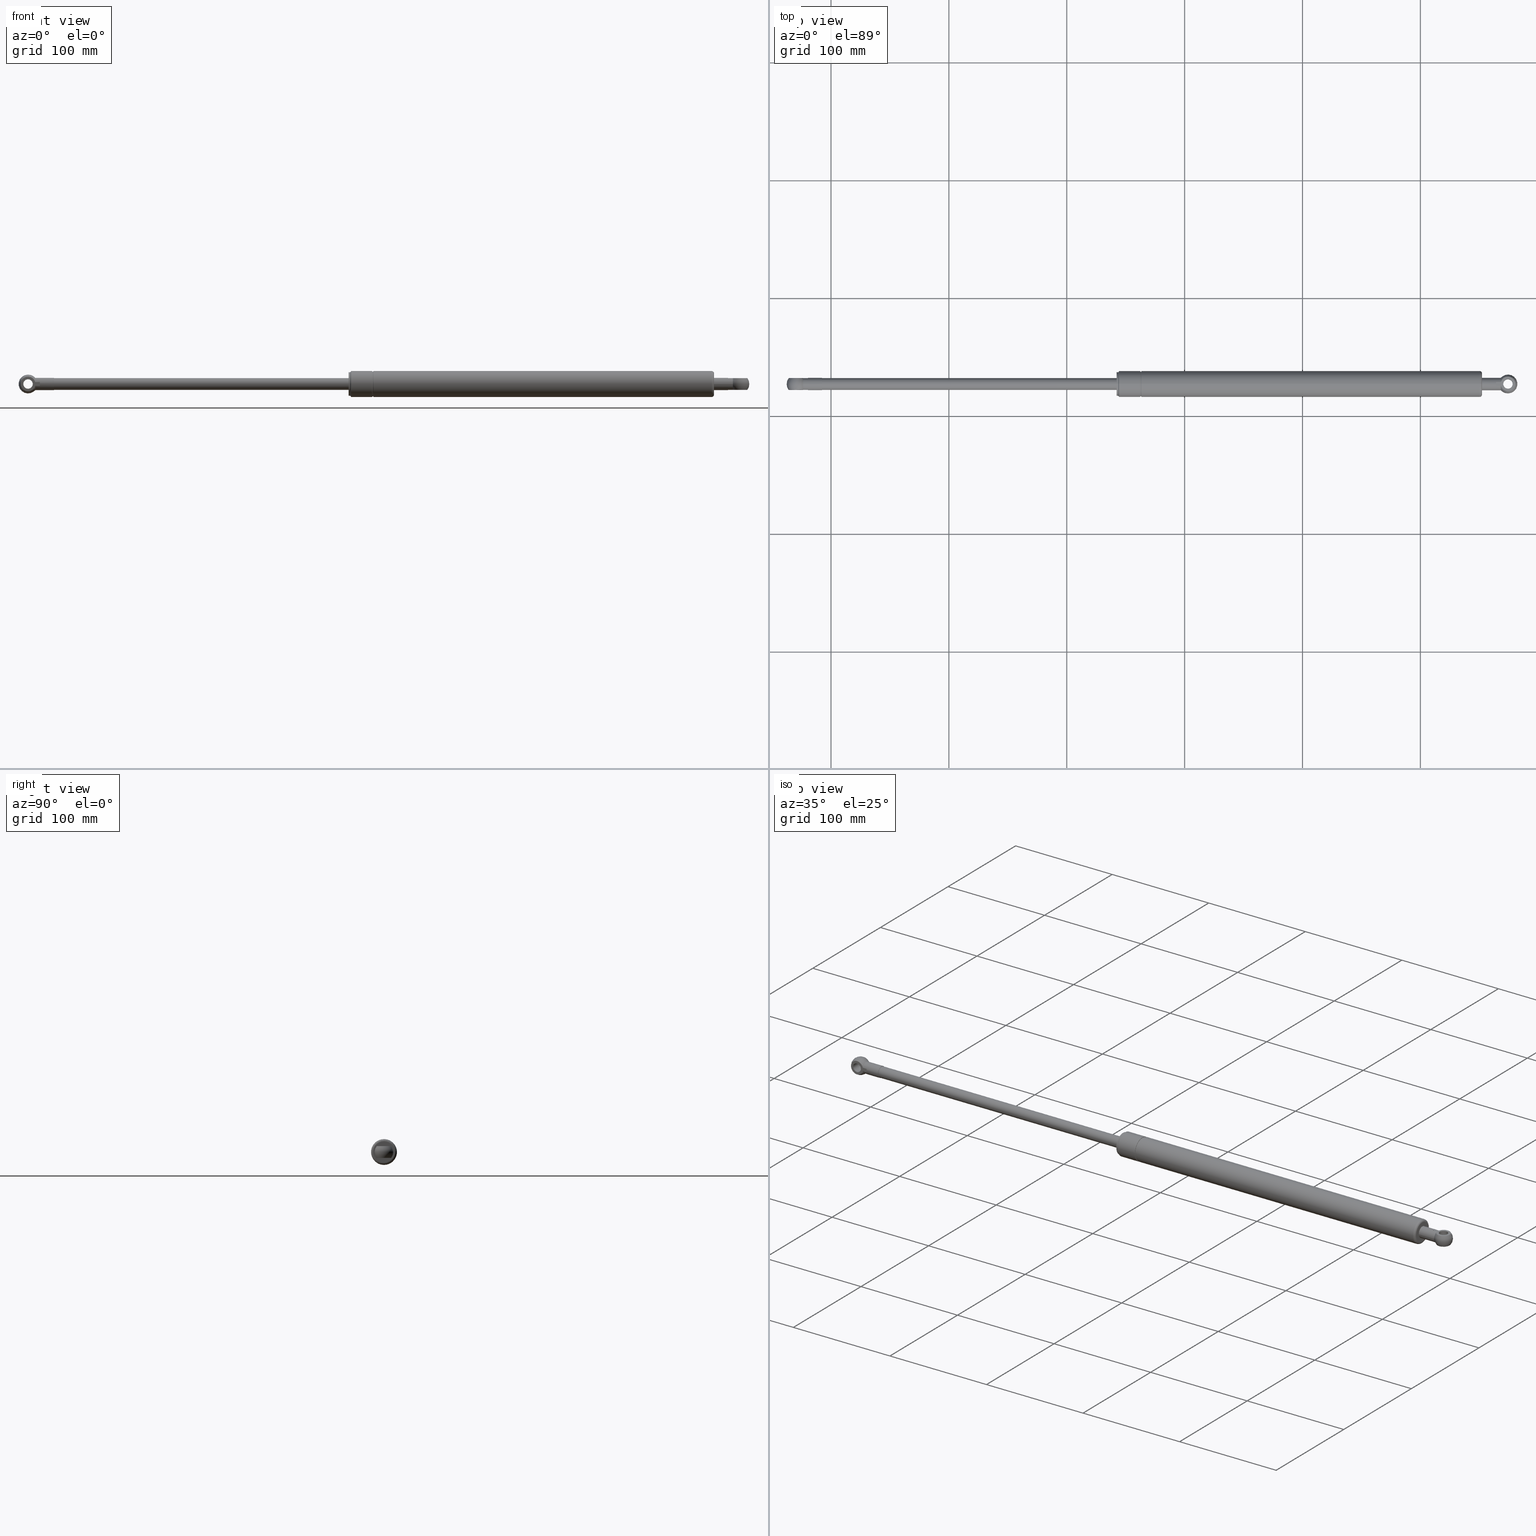
[diagram: canonical four-view strip — front | top / right | iso, engineering-drawing reading convention]
A machine part, canonical four-view strip (front | top / right | iso — engineering-drawing reading convention). The complete STEP part file that produces these views, byte-faithful:
ISO-10303-21;
HEADER;
/* Generated by software containing ST-Developer
 * from STEP Tools, Inc. (www.steptools.com) 
 */

FILE_DESCRIPTION(
/* description */ (''),
/* implementation_level */ '2;1');

FILE_NAME(
/* name */ '\\\\SYNOLOGYNAS\\web\\db2\\SBG-600-H\\\X2\B3C4BA74\X0\\\SB
G-600-H.stp',
/* time_stamp */ '2026-02-10T15:48:11+09:00',
/* author */ ('user'),
/* organization */ (''),
/* preprocessor_version */ 'ST-DEVELOPER v15.6',
/* originating_system */ 'Autodesk Inventor 2015',
/* authorisation */ '');

FILE_SCHEMA (('AUTOMOTIVE_DESIGN { 1 0 10303 214 3 1 1 }'));
ENDSEC;

DATA;
#10=MECHANICAL_DESIGN_GEOMETRIC_PRESENTATION_REPRESENTATION('',(#506,#508,
#509,#510,#511,#496,#494,#495,#497,#502,#499,#507,#498,#503,#504,#501,#500,
#505,#514,#516,#517,#512,#515,#513,#523,#524,#521,#519,#520,#522,#518,#526,
#525,#529,#530,#528,#531,#527,#534,#532,#535,#533,#536,#537),#1042);
#11=ITEM_DEFINED_TRANSFORMATION($,$,#586,#678);
#12=ITEM_DEFINED_TRANSFORMATION($,$,#628,#679);
#13=ITEM_DEFINED_TRANSFORMATION($,$,#644,#680);
#14=ITEM_DEFINED_TRANSFORMATION($,$,#653,#681);
#15=ITEM_DEFINED_TRANSFORMATION($,$,#653,#682);
#16=(
REPRESENTATION_RELATIONSHIP($,$,#1064,#1068)
REPRESENTATION_RELATIONSHIP_WITH_TRANSFORMATION(#11)
SHAPE_REPRESENTATION_RELATIONSHIP()
);
#17=(
REPRESENTATION_RELATIONSHIP($,$,#1065,#1068)
REPRESENTATION_RELATIONSHIP_WITH_TRANSFORMATION(#12)
SHAPE_REPRESENTATION_RELATIONSHIP()
);
#18=(
REPRESENTATION_RELATIONSHIP($,$,#1066,#1068)
REPRESENTATION_RELATIONSHIP_WITH_TRANSFORMATION(#13)
SHAPE_REPRESENTATION_RELATIONSHIP()
);
#19=(
REPRESENTATION_RELATIONSHIP($,$,#1067,#1068)
REPRESENTATION_RELATIONSHIP_WITH_TRANSFORMATION(#14)
SHAPE_REPRESENTATION_RELATIONSHIP()
);
#20=(
REPRESENTATION_RELATIONSHIP($,$,#1067,#1068)
REPRESENTATION_RELATIONSHIP_WITH_TRANSFORMATION(#15)
SHAPE_REPRESENTATION_RELATIONSHIP()
);
#21=CONTEXT_DEPENDENT_SHAPE_REPRESENTATION(#16,#1059);
#22=CONTEXT_DEPENDENT_SHAPE_REPRESENTATION(#17,#1060);
#23=CONTEXT_DEPENDENT_SHAPE_REPRESENTATION(#18,#1061);
#24=CONTEXT_DEPENDENT_SHAPE_REPRESENTATION(#19,#1062);
#25=CONTEXT_DEPENDENT_SHAPE_REPRESENTATION(#20,#1063);
#26=NEXT_ASSEMBLY_USAGE_OCCURRENCE('SBG-600-H (2):1',$,$,#1074,#1070,$);
#27=NEXT_ASSEMBLY_USAGE_OCCURRENCE('SBG-600-H (1):1',$,$,#1074,#1071,$);
#28=NEXT_ASSEMBLY_USAGE_OCCURRENCE('SBG-600-H (3):1',$,$,#1074,#1072,$);
#29=NEXT_ASSEMBLY_USAGE_OCCURRENCE('\X2\B9C1D06CBCFC\X0\:1',$,$,#1074,#1073,
$);
#30=NEXT_ASSEMBLY_USAGE_OCCURRENCE('\X2\B9C1D06CBCFC\X0\:2',$,$,#1074,#1073,
$);
#31=SPHERICAL_SURFACE('',#673,8.);
#32=LINE('',#1002,#38);
#33=LINE('',#1004,#39);
#34=LINE('',#1006,#40);
#35=LINE('',#1013,#41);
#36=LINE('',#1015,#42);
#37=LINE('',#1017,#43);
#38=VECTOR('',#843,3.96365176617517);
#39=VECTOR('',#844,3.20156211871644);
#40=VECTOR('',#845,3.96365176617517);
#41=VECTOR('',#854,3.96365176617518);
#42=VECTOR('',#855,3.20156211871644);
#43=VECTOR('',#856,3.96365176617518);
#44=SHAPE_REPRESENTATION_RELATIONSHIP('SRR','None',#1064,#48);
#45=SHAPE_REPRESENTATION_RELATIONSHIP('SRR','None',#1065,#49);
#46=SHAPE_REPRESENTATION_RELATIONSHIP('SRR','None',#1066,#50);
#47=SHAPE_REPRESENTATION_RELATIONSHIP('SRR','None',#1067,#51);
#48=ADVANCED_BREP_SHAPE_REPRESENTATION($,(#52),#1037);
#49=ADVANCED_BREP_SHAPE_REPRESENTATION($,(#53),#1038);
#50=ADVANCED_BREP_SHAPE_REPRESENTATION($,(#54),#1039);
#51=ADVANCED_BREP_SHAPE_REPRESENTATION($,(#55),#1040);
#52=MANIFOLD_SOLID_BREP('\X2\C194B9ACB4DC\X0\1',#582);
#53=MANIFOLD_SOLID_BREP('\X2\C194B9ACB4DC\X0\1',#583);
#54=MANIFOLD_SOLID_BREP('\X2\C194B9ACB4DC\X0\1',#584);
#55=MANIFOLD_SOLID_BREP('\X2\C194B9ACB4DC\X0\2',#585);
#56=CONICAL_SURFACE('',#612,3.75,44.9999999999996);
#57=CONICAL_SURFACE('',#629,3.75,45.);
#58=CONICAL_SURFACE('',#654,3.5735,45.);
#59=CONICAL_SURFACE('',#661,1.66175,59.);
#60=CYLINDRICAL_SURFACE('',#592,10.5);
#61=CYLINDRICAL_SURFACE('',#598,11.);
#62=CYLINDRICAL_SURFACE('',#605,2.);
#63=CYLINDRICAL_SURFACE('',#609,8.);
#64=CYLINDRICAL_SURFACE('',#611,9.);
#65=CYLINDRICAL_SURFACE('',#616,4.);
#66=CYLINDRICAL_SURFACE('',#620,10.);
#67=CYLINDRICAL_SURFACE('',#625,11.);
#68=CYLINDRICAL_SURFACE('',#632,4.);
#69=CYLINDRICAL_SURFACE('',#640,8.99999999999993);
#70=CYLINDRICAL_SURFACE('',#641,5.00000000000002);
#71=CYLINDRICAL_SURFACE('',#645,8.);
#72=CYLINDRICAL_SURFACE('',#650,5.);
#73=CYLINDRICAL_SURFACE('',#657,3.3235);
#74=CYLINDRICAL_SURFACE('',#662,4.);
#75=CYLINDRICAL_SURFACE('',#676,5.25);
#76=TOROIDAL_SURFACE('',#590,10.7,0.200000000000002);
#77=TOROIDAL_SURFACE('',#594,10.7,0.199999999999999);
#78=TOROIDAL_SURFACE('',#606,11.,3.);
#79=TOROIDAL_SURFACE('',#618,11.,1.);
#80=TOROIDAL_SURFACE('',#622,9.,2.);
#81=FACE_BOUND('',#162,.T.);
#82=FACE_BOUND('',#164,.T.);
#83=FACE_BOUND('',#166,.T.);
#84=FACE_BOUND('',#168,.T.);
#85=FACE_BOUND('',#170,.T.);
#86=FACE_BOUND('',#172,.T.);
#87=FACE_BOUND('',#175,.T.);
#88=FACE_BOUND('',#177,.T.);
#89=FACE_BOUND('',#179,.T.);
#90=FACE_BOUND('',#181,.T.);
#91=FACE_BOUND('',#183,.T.);
#92=FACE_BOUND('',#185,.T.);
#93=FACE_BOUND('',#188,.T.);
#94=FACE_BOUND('',#190,.T.);
#95=FACE_BOUND('',#192,.T.);
#96=FACE_BOUND('',#194,.T.);
#97=FACE_BOUND('',#196,.T.);
#98=FACE_BOUND('',#198,.T.);
#99=FACE_BOUND('',#200,.T.);
#100=FACE_BOUND('',#202,.T.);
#101=FACE_BOUND('',#204,.T.);
#102=FACE_BOUND('',#207,.T.);
#103=FACE_BOUND('',#210,.T.);
#104=FACE_BOUND('',#212,.T.);
#105=FACE_BOUND('',#214,.T.);
#106=FACE_BOUND('',#216,.T.);
#107=FACE_BOUND('',#218,.T.);
#108=FACE_BOUND('',#220,.T.);
#109=FACE_BOUND('',#222,.T.);
#110=FACE_BOUND('',#224,.T.);
#111=FACE_BOUND('',#226,.T.);
#112=FACE_BOUND('',#228,.T.);
#113=FACE_BOUND('',#231,.T.);
#114=FACE_BOUND('',#233,.T.);
#115=FACE_BOUND('',#236,.T.);
#116=FACE_BOUND('',#240,.T.);
#117=FACE_OUTER_BOUND('',#161,.T.);
#118=FACE_OUTER_BOUND('',#163,.T.);
#119=FACE_OUTER_BOUND('',#165,.T.);
#120=FACE_OUTER_BOUND('',#167,.T.);
#121=FACE_OUTER_BOUND('',#169,.T.);
#122=FACE_OUTER_BOUND('',#171,.T.);
#123=FACE_OUTER_BOUND('',#173,.T.);
#124=FACE_OUTER_BOUND('',#174,.T.);
#125=FACE_OUTER_BOUND('',#176,.T.);
#126=FACE_OUTER_BOUND('',#178,.T.);
#127=FACE_OUTER_BOUND('',#180,.T.);
#128=FACE_OUTER_BOUND('',#182,.T.);
#129=FACE_OUTER_BOUND('',#184,.T.);
#130=FACE_OUTER_BOUND('',#186,.T.);
#131=FACE_OUTER_BOUND('',#187,.T.);
#132=FACE_OUTER_BOUND('',#189,.T.);
#133=FACE_OUTER_BOUND('',#191,.T.);
#134=FACE_OUTER_BOUND('',#193,.T.);
#135=FACE_OUTER_BOUND('',#195,.T.);
#136=FACE_OUTER_BOUND('',#197,.T.);
#137=FACE_OUTER_BOUND('',#199,.T.);
#138=FACE_OUTER_BOUND('',#201,.T.);
#139=FACE_OUTER_BOUND('',#203,.T.);
#140=FACE_OUTER_BOUND('',#205,.T.);
#141=FACE_OUTER_BOUND('',#206,.T.);
#142=FACE_OUTER_BOUND('',#208,.T.);
#143=FACE_OUTER_BOUND('',#209,.T.);
#144=FACE_OUTER_BOUND('',#211,.T.);
#145=FACE_OUTER_BOUND('',#213,.T.);
#146=FACE_OUTER_BOUND('',#215,.T.);
#147=FACE_OUTER_BOUND('',#217,.T.);
#148=FACE_OUTER_BOUND('',#219,.T.);
#149=FACE_OUTER_BOUND('',#221,.T.);
#150=FACE_OUTER_BOUND('',#223,.T.);
#151=FACE_OUTER_BOUND('',#225,.T.);
#152=FACE_OUTER_BOUND('',#227,.T.);
#153=FACE_OUTER_BOUND('',#229,.T.);
#154=FACE_OUTER_BOUND('',#230,.T.);
#155=FACE_OUTER_BOUND('',#232,.T.);
#156=FACE_OUTER_BOUND('',#234,.T.);
#157=FACE_OUTER_BOUND('',#235,.T.);
#158=FACE_OUTER_BOUND('',#237,.T.);
#159=FACE_OUTER_BOUND('',#238,.T.);
#160=FACE_OUTER_BOUND('',#239,.T.);
#161=EDGE_LOOP('',(#378));
#162=EDGE_LOOP('',(#379));
#163=EDGE_LOOP('',(#380));
#164=EDGE_LOOP('',(#381));
#165=EDGE_LOOP('',(#382));
#166=EDGE_LOOP('',(#383));
#167=EDGE_LOOP('',(#384));
#168=EDGE_LOOP('',(#385));
#169=EDGE_LOOP('',(#386));
#170=EDGE_LOOP('',(#387));
#171=EDGE_LOOP('',(#388));
#172=EDGE_LOOP('',(#389));
#173=EDGE_LOOP('',(#390));
#174=EDGE_LOOP('',(#391));
#175=EDGE_LOOP('',(#392));
#176=EDGE_LOOP('',(#393));
#177=EDGE_LOOP('',(#394));
#178=EDGE_LOOP('',(#395));
#179=EDGE_LOOP('',(#396));
#180=EDGE_LOOP('',(#397));
#181=EDGE_LOOP('',(#398));
#182=EDGE_LOOP('',(#399));
#183=EDGE_LOOP('',(#400));
#184=EDGE_LOOP('',(#401));
#185=EDGE_LOOP('',(#402));
#186=EDGE_LOOP('',(#403));
#187=EDGE_LOOP('',(#404));
#188=EDGE_LOOP('',(#405));
#189=EDGE_LOOP('',(#406));
#190=EDGE_LOOP('',(#407));
#191=EDGE_LOOP('',(#408));
#192=EDGE_LOOP('',(#409));
#193=EDGE_LOOP('',(#410));
#194=EDGE_LOOP('',(#411));
#195=EDGE_LOOP('',(#412));
#196=EDGE_LOOP('',(#413));
#197=EDGE_LOOP('',(#414));
#198=EDGE_LOOP('',(#415));
#199=EDGE_LOOP('',(#416));
#200=EDGE_LOOP('',(#417));
#201=EDGE_LOOP('',(#418));
#202=EDGE_LOOP('',(#419));
#203=EDGE_LOOP('',(#420));
#204=EDGE_LOOP('',(#421));
#205=EDGE_LOOP('',(#422));
#206=EDGE_LOOP('',(#423));
#207=EDGE_LOOP('',(#424));
#208=EDGE_LOOP('',(#425));
#209=EDGE_LOOP('',(#426));
#210=EDGE_LOOP('',(#427));
#211=EDGE_LOOP('',(#428));
#212=EDGE_LOOP('',(#429));
#213=EDGE_LOOP('',(#430));
#214=EDGE_LOOP('',(#431));
#215=EDGE_LOOP('',(#432));
#216=EDGE_LOOP('',(#433));
#217=EDGE_LOOP('',(#434));
#218=EDGE_LOOP('',(#435));
#219=EDGE_LOOP('',(#436));
#220=EDGE_LOOP('',(#437));
#221=EDGE_LOOP('',(#438));
#222=EDGE_LOOP('',(#439));
#223=EDGE_LOOP('',(#440));
#224=EDGE_LOOP('',(#441));
#225=EDGE_LOOP('',(#442));
#226=EDGE_LOOP('',(#443));
#227=EDGE_LOOP('',(#444));
#228=EDGE_LOOP('',(#445));
#229=EDGE_LOOP('',(#446));
#230=EDGE_LOOP('',(#447));
#231=EDGE_LOOP('',(#448));
#232=EDGE_LOOP('',(#449,#450,#451,#452));
#233=EDGE_LOOP('',(#453));
#234=EDGE_LOOP('',(#454,#455));
#235=EDGE_LOOP('',(#456,#457,#458,#459));
#236=EDGE_LOOP('',(#460));
#237=EDGE_LOOP('',(#461,#462));
#238=EDGE_LOOP('',(#463,#464,#465,#466));
#239=EDGE_LOOP('',(#467,#468,#469,#470,#471,#472,#473,#474));
#240=EDGE_LOOP('',(#475));
#241=CIRCLE('',#588,11.);
#242=CIRCLE('',#589,10.7);
#243=CIRCLE('',#591,10.5);
#244=CIRCLE('',#593,10.5);
#245=CIRCLE('',#595,10.7);
#246=CIRCLE('',#597,11.);
#247=CIRCLE('',#599,11.);
#248=CIRCLE('',#601,2.);
#249=CIRCLE('',#603,9.);
#250=CIRCLE('',#604,2.);
#251=CIRCLE('',#607,8.);
#252=CIRCLE('',#608,9.);
#253=CIRCLE('',#610,8.);
#254=CIRCLE('',#613,3.5);
#255=CIRCLE('',#614,4.);
#256=CIRCLE('',#617,4.);
#257=CIRCLE('',#619,10.);
#258=CIRCLE('',#621,10.);
#259=CIRCLE('',#623,11.);
#260=CIRCLE('',#624,9.);
#261=CIRCLE('',#630,4.);
#262=CIRCLE('',#631,3.5);
#263=CIRCLE('',#633,4.);
#264=CIRCLE('',#636,8.99999999999989);
#265=CIRCLE('',#637,5.);
#266=CIRCLE('',#639,8.99999999999996);
#267=CIRCLE('',#642,5.00000000000003);
#268=CIRCLE('',#646,8.);
#269=CIRCLE('',#647,8.);
#270=CIRCLE('',#649,5.);
#271=CIRCLE('',#651,5.);
#272=CIRCLE('',#655,3.3235);
#273=CIRCLE('',#656,3.8235);
#274=CIRCLE('',#658,3.3235);
#275=CIRCLE('',#660,5.25);
#276=CIRCLE('',#663,4.);
#277=CIRCLE('',#664,4.);
#278=CIRCLE('',#666,6.2449979983984);
#279=CIRCLE('',#668,5.25);
#280=CIRCLE('',#670,6.2449979983984);
#281=CIRCLE('',#672,5.25);
#282=CIRCLE('',#674,5.25);
#283=CIRCLE('',#675,5.25);
#284=VERTEX_POINT('',#885);
#285=VERTEX_POINT('',#887);
#286=VERTEX_POINT('',#890);
#287=VERTEX_POINT('',#893);
#288=VERTEX_POINT('',#896);
#289=VERTEX_POINT('',#899);
#290=VERTEX_POINT('',#902);
#291=VERTEX_POINT('',#905);
#292=VERTEX_POINT('',#908);
#293=VERTEX_POINT('',#910);
#294=VERTEX_POINT('',#914);
#295=VERTEX_POINT('',#916);
#296=VERTEX_POINT('',#919);
#297=VERTEX_POINT('',#923);
#298=VERTEX_POINT('',#925);
#299=VERTEX_POINT('',#929);
#300=VERTEX_POINT('',#932);
#301=VERTEX_POINT('',#935);
#302=VERTEX_POINT('',#938);
#303=VERTEX_POINT('',#940);
#304=VERTEX_POINT('',#947);
#305=VERTEX_POINT('',#949);
#306=VERTEX_POINT('',#952);
#307=VERTEX_POINT('',#956);
#308=VERTEX_POINT('',#958);
#309=VERTEX_POINT('',#961);
#310=VERTEX_POINT('',#965);
#311=VERTEX_POINT('',#970);
#312=VERTEX_POINT('',#972);
#313=VERTEX_POINT('',#975);
#314=VERTEX_POINT('',#978);
#315=VERTEX_POINT('',#983);
#316=VERTEX_POINT('',#985);
#317=VERTEX_POINT('',#988);
#318=VERTEX_POINT('',#991);
#319=VERTEX_POINT('',#995);
#320=VERTEX_POINT('',#997);
#321=VERTEX_POINT('',#1000);
#322=VERTEX_POINT('',#1001);
#323=VERTEX_POINT('',#1003);
#324=VERTEX_POINT('',#1005);
#325=VERTEX_POINT('',#1011);
#326=VERTEX_POINT('',#1012);
#327=VERTEX_POINT('',#1014);
#328=VERTEX_POINT('',#1016);
#329=EDGE_CURVE('',#284,#284,#241,.T.);
#330=EDGE_CURVE('',#285,#285,#242,.T.);
#331=EDGE_CURVE('',#286,#286,#243,.T.);
#332=EDGE_CURVE('',#287,#287,#244,.T.);
#333=EDGE_CURVE('',#288,#288,#245,.T.);
#334=EDGE_CURVE('',#289,#289,#246,.T.);
#335=EDGE_CURVE('',#290,#290,#247,.T.);
#336=EDGE_CURVE('',#291,#291,#248,.T.);
#337=EDGE_CURVE('',#292,#292,#249,.T.);
#338=EDGE_CURVE('',#293,#293,#250,.T.);
#339=EDGE_CURVE('',#294,#294,#251,.T.);
#340=EDGE_CURVE('',#295,#295,#252,.F.);
#341=EDGE_CURVE('',#296,#296,#253,.T.);
#342=EDGE_CURVE('',#297,#297,#254,.T.);
#343=EDGE_CURVE('',#298,#298,#255,.T.);
#344=EDGE_CURVE('',#299,#299,#256,.T.);
#345=EDGE_CURVE('',#300,#300,#257,.T.);
#346=EDGE_CURVE('',#301,#301,#258,.T.);
#347=EDGE_CURVE('',#302,#302,#259,.T.);
#348=EDGE_CURVE('',#303,#303,#260,.T.);
#349=EDGE_CURVE('',#304,#304,#261,.T.);
#350=EDGE_CURVE('',#305,#305,#262,.T.);
#351=EDGE_CURVE('',#306,#306,#263,.T.);
#352=EDGE_CURVE('',#307,#307,#264,.T.);
#353=EDGE_CURVE('',#308,#308,#265,.T.);
#354=EDGE_CURVE('',#309,#309,#266,.T.);
#355=EDGE_CURVE('',#310,#310,#267,.T.);
#356=EDGE_CURVE('',#311,#311,#268,.T.);
#357=EDGE_CURVE('',#312,#312,#269,.T.);
#358=EDGE_CURVE('',#313,#313,#270,.T.);
#359=EDGE_CURVE('',#314,#314,#271,.T.);
#360=EDGE_CURVE('',#315,#315,#272,.T.);
#361=EDGE_CURVE('',#316,#316,#273,.T.);
#362=EDGE_CURVE('',#317,#317,#274,.T.);
#363=EDGE_CURVE('',#318,#318,#275,.T.);
#364=EDGE_CURVE('',#319,#319,#276,.T.);
#365=EDGE_CURVE('',#320,#320,#277,.T.);
#366=EDGE_CURVE('',#321,#322,#32,.T.);
#367=EDGE_CURVE('',#321,#323,#33,.T.);
#368=EDGE_CURVE('',#324,#323,#34,.T.);
#369=EDGE_CURVE('',#322,#324,#278,.T.);
#370=EDGE_CURVE('',#323,#321,#279,.T.);
#371=EDGE_CURVE('',#325,#326,#35,.T.);
#372=EDGE_CURVE('',#325,#327,#36,.T.);
#373=EDGE_CURVE('',#328,#327,#37,.T.);
#374=EDGE_CURVE('',#326,#328,#280,.T.);
#375=EDGE_CURVE('',#327,#325,#281,.T.);
#376=EDGE_CURVE('',#324,#326,#282,.T.);
#377=EDGE_CURVE('',#328,#322,#283,.T.);
#378=ORIENTED_EDGE('',*,*,#329,.F.);
#379=ORIENTED_EDGE('',*,*,#330,.T.);
#380=ORIENTED_EDGE('',*,*,#330,.F.);
#381=ORIENTED_EDGE('',*,*,#331,.T.);
#382=ORIENTED_EDGE('',*,*,#331,.F.);
#383=ORIENTED_EDGE('',*,*,#332,.T.);
#384=ORIENTED_EDGE('',*,*,#332,.F.);
#385=ORIENTED_EDGE('',*,*,#333,.T.);
#386=ORIENTED_EDGE('',*,*,#334,.F.);
#387=ORIENTED_EDGE('',*,*,#333,.F.);
#388=ORIENTED_EDGE('',*,*,#335,.T.);
#389=ORIENTED_EDGE('',*,*,#334,.T.);
#390=ORIENTED_EDGE('',*,*,#336,.T.);
#391=ORIENTED_EDGE('',*,*,#337,.T.);
#392=ORIENTED_EDGE('',*,*,#338,.F.);
#393=ORIENTED_EDGE('',*,*,#336,.F.);
#394=ORIENTED_EDGE('',*,*,#338,.T.);
#395=ORIENTED_EDGE('',*,*,#339,.F.);
#396=ORIENTED_EDGE('',*,*,#340,.T.);
#397=ORIENTED_EDGE('',*,*,#341,.F.);
#398=ORIENTED_EDGE('',*,*,#339,.T.);
#399=ORIENTED_EDGE('',*,*,#337,.F.);
#400=ORIENTED_EDGE('',*,*,#340,.F.);
#401=ORIENTED_EDGE('',*,*,#342,.T.);
#402=ORIENTED_EDGE('',*,*,#343,.T.);
#403=ORIENTED_EDGE('',*,*,#342,.F.);
#404=ORIENTED_EDGE('',*,*,#344,.F.);
#405=ORIENTED_EDGE('',*,*,#343,.F.);
#406=ORIENTED_EDGE('',*,*,#345,.T.);
#407=ORIENTED_EDGE('',*,*,#335,.F.);
#408=ORIENTED_EDGE('',*,*,#346,.T.);
#409=ORIENTED_EDGE('',*,*,#345,.F.);
#410=ORIENTED_EDGE('',*,*,#347,.T.);
#411=ORIENTED_EDGE('',*,*,#348,.T.);
#412=ORIENTED_EDGE('',*,*,#329,.T.);
#413=ORIENTED_EDGE('',*,*,#347,.F.);
#414=ORIENTED_EDGE('',*,*,#348,.F.);
#415=ORIENTED_EDGE('',*,*,#344,.T.);
#416=ORIENTED_EDGE('',*,*,#346,.F.);
#417=ORIENTED_EDGE('',*,*,#341,.T.);
#418=ORIENTED_EDGE('',*,*,#349,.T.);
#419=ORIENTED_EDGE('',*,*,#350,.T.);
#420=ORIENTED_EDGE('',*,*,#351,.F.);
#421=ORIENTED_EDGE('',*,*,#349,.F.);
#422=ORIENTED_EDGE('',*,*,#350,.F.);
#423=ORIENTED_EDGE('',*,*,#352,.T.);
#424=ORIENTED_EDGE('',*,*,#353,.F.);
#425=ORIENTED_EDGE('',*,*,#354,.F.);
#426=ORIENTED_EDGE('',*,*,#352,.F.);
#427=ORIENTED_EDGE('',*,*,#354,.T.);
#428=ORIENTED_EDGE('',*,*,#355,.F.);
#429=ORIENTED_EDGE('',*,*,#353,.T.);
#430=ORIENTED_EDGE('',*,*,#355,.T.);
#431=ORIENTED_EDGE('',*,*,#351,.T.);
#432=ORIENTED_EDGE('',*,*,#356,.F.);
#433=ORIENTED_EDGE('',*,*,#357,.T.);
#434=ORIENTED_EDGE('',*,*,#356,.T.);
#435=ORIENTED_EDGE('',*,*,#358,.F.);
#436=ORIENTED_EDGE('',*,*,#359,.F.);
#437=ORIENTED_EDGE('',*,*,#358,.T.);
#438=ORIENTED_EDGE('',*,*,#357,.F.);
#439=ORIENTED_EDGE('',*,*,#359,.T.);
#440=ORIENTED_EDGE('',*,*,#360,.T.);
#441=ORIENTED_EDGE('',*,*,#361,.T.);
#442=ORIENTED_EDGE('',*,*,#362,.F.);
#443=ORIENTED_EDGE('',*,*,#360,.F.);
#444=ORIENTED_EDGE('',*,*,#363,.T.);
#445=ORIENTED_EDGE('',*,*,#361,.F.);
#446=ORIENTED_EDGE('',*,*,#362,.T.);
#447=ORIENTED_EDGE('',*,*,#364,.F.);
#448=ORIENTED_EDGE('',*,*,#365,.F.);
#449=ORIENTED_EDGE('',*,*,#366,.F.);
#450=ORIENTED_EDGE('',*,*,#367,.T.);
#451=ORIENTED_EDGE('',*,*,#368,.F.);
#452=ORIENTED_EDGE('',*,*,#369,.F.);
#453=ORIENTED_EDGE('',*,*,#364,.T.);
#454=ORIENTED_EDGE('',*,*,#370,.F.);
#455=ORIENTED_EDGE('',*,*,#367,.F.);
#456=ORIENTED_EDGE('',*,*,#371,.F.);
#457=ORIENTED_EDGE('',*,*,#372,.T.);
#458=ORIENTED_EDGE('',*,*,#373,.F.);
#459=ORIENTED_EDGE('',*,*,#374,.F.);
#460=ORIENTED_EDGE('',*,*,#365,.T.);
#461=ORIENTED_EDGE('',*,*,#375,.F.);
#462=ORIENTED_EDGE('',*,*,#372,.F.);
#463=ORIENTED_EDGE('',*,*,#369,.T.);
#464=ORIENTED_EDGE('',*,*,#376,.T.);
#465=ORIENTED_EDGE('',*,*,#374,.T.);
#466=ORIENTED_EDGE('',*,*,#377,.T.);
#467=ORIENTED_EDGE('',*,*,#366,.T.);
#468=ORIENTED_EDGE('',*,*,#377,.F.);
#469=ORIENTED_EDGE('',*,*,#373,.T.);
#470=ORIENTED_EDGE('',*,*,#375,.T.);
#471=ORIENTED_EDGE('',*,*,#371,.T.);
#472=ORIENTED_EDGE('',*,*,#376,.F.);
#473=ORIENTED_EDGE('',*,*,#368,.T.);
#474=ORIENTED_EDGE('',*,*,#370,.T.);
#475=ORIENTED_EDGE('',*,*,#363,.F.);
#476=PLANE('',#587);
#477=PLANE('',#596);
#478=PLANE('',#600);
#479=PLANE('',#602);
#480=PLANE('',#615);
#481=PLANE('',#626);
#482=PLANE('',#627);
#483=PLANE('',#634);
#484=PLANE('',#635);
#485=PLANE('',#638);
#486=PLANE('',#643);
#487=PLANE('',#648);
#488=PLANE('',#652);
#489=PLANE('',#659);
#490=PLANE('',#665);
#491=PLANE('',#667);
#492=PLANE('',#669);
#493=PLANE('',#671);
#494=STYLED_ITEM('',(#1096),#538);
#495=STYLED_ITEM('',(#1096),#539);
#496=STYLED_ITEM('',(#1096),#540);
#497=STYLED_ITEM('',(#1096),#541);
#498=STYLED_ITEM('',(#1096),#542);
#499=STYLED_ITEM('',(#1096),#543);
#500=STYLED_ITEM('',(#1096),#544);
#501=STYLED_ITEM('',(#1096),#545);
#502=STYLED_ITEM('',(#1096),#546);
#503=STYLED_ITEM('',(#1096),#547);
#504=STYLED_ITEM('',(#1096),#548);
#505=STYLED_ITEM('',(#1096),#549);
#506=STYLED_ITEM('',(#1096),#550);
#507=STYLED_ITEM('',(#1096),#551);
#508=STYLED_ITEM('',(#1096),#552);
#509=STYLED_ITEM('',(#1096),#553);
#510=STYLED_ITEM('',(#1096),#554);
#511=STYLED_ITEM('',(#1096),#555);
#512=STYLED_ITEM('',(#1096),#556);
#513=STYLED_ITEM('',(#1096),#557);
#514=STYLED_ITEM('',(#1096),#558);
#515=STYLED_ITEM('',(#1095),#52);
#516=STYLED_ITEM('',(#1098),#559);
#517=STYLED_ITEM('',(#1098),#560);
#518=STYLED_ITEM('',(#1098),#561);
#519=STYLED_ITEM('',(#1098),#562);
#520=STYLED_ITEM('',(#1098),#563);
#521=STYLED_ITEM('',(#1098),#564);
#522=STYLED_ITEM('',(#1098),#565);
#523=STYLED_ITEM('',(#1098),#566);
#524=STYLED_ITEM('',(#1097),#53);
#525=STYLED_ITEM('',(#1099),#54);
#526=STYLED_ITEM('',(#1100),#571);
#527=STYLED_ITEM('',(#1100),#572);
#528=STYLED_ITEM('',(#1100),#573);
#529=STYLED_ITEM('',(#1100),#574);
#530=STYLED_ITEM('',(#1100),#575);
#531=STYLED_ITEM('',(#1100),#576);
#532=STYLED_ITEM('',(#1100),#577);
#533=STYLED_ITEM('',(#1100),#578);
#534=STYLED_ITEM('',(#1100),#579);
#535=STYLED_ITEM('',(#1100),#580);
#536=STYLED_ITEM('',(#1100),#581);
#537=STYLED_ITEM('',(#1095),#55);
#538=ADVANCED_FACE('',(#117,#81),#476,.F.);
#539=ADVANCED_FACE('',(#118,#82),#76,.F.);
#540=ADVANCED_FACE('',(#119,#83),#60,.T.);
#541=ADVANCED_FACE('',(#120,#84),#77,.F.);
#542=ADVANCED_FACE('',(#121,#85),#477,.F.);
#543=ADVANCED_FACE('',(#122,#86),#61,.T.);
#544=ADVANCED_FACE('',(#123),#478,.F.);
#545=ADVANCED_FACE('',(#124,#87),#479,.F.);
#546=ADVANCED_FACE('',(#125,#88),#62,.F.);
#547=ADVANCED_FACE('',(#126,#89),#78,.T.);
#548=ADVANCED_FACE('',(#127,#90),#63,.F.);
#549=ADVANCED_FACE('',(#128,#91),#64,.F.);
#550=ADVANCED_FACE('',(#129,#92),#56,.T.);
#551=ADVANCED_FACE('',(#130),#480,.T.);
#552=ADVANCED_FACE('',(#131,#93),#65,.T.);
#553=ADVANCED_FACE('',(#132,#94),#79,.F.);
#554=ADVANCED_FACE('',(#133,#95),#66,.T.);
#555=ADVANCED_FACE('',(#134,#96),#80,.T.);
#556=ADVANCED_FACE('',(#135,#97),#67,.T.);
#557=ADVANCED_FACE('',(#136,#98),#481,.T.);
#558=ADVANCED_FACE('',(#137,#99),#482,.T.);
#559=ADVANCED_FACE('',(#138,#100),#57,.T.);
#560=ADVANCED_FACE('',(#139,#101),#68,.T.);
#561=ADVANCED_FACE('',(#140),#483,.F.);
#562=ADVANCED_FACE('',(#141,#102),#484,.T.);
#563=ADVANCED_FACE('',(#142),#485,.T.);
#564=ADVANCED_FACE('',(#143,#103),#69,.T.);
#565=ADVANCED_FACE('',(#144,#104),#70,.T.);
#566=ADVANCED_FACE('',(#145,#105),#486,.T.);
#567=ADVANCED_FACE('',(#146,#106),#71,.T.);
#568=ADVANCED_FACE('',(#147,#107),#487,.T.);
#569=ADVANCED_FACE('',(#148,#108),#72,.F.);
#570=ADVANCED_FACE('',(#149,#109),#488,.T.);
#571=ADVANCED_FACE('',(#150,#110),#58,.F.);
#572=ADVANCED_FACE('',(#151,#111),#73,.F.);
#573=ADVANCED_FACE('',(#152,#112),#489,.T.);
#574=ADVANCED_FACE('',(#153),#59,.F.);
#575=ADVANCED_FACE('',(#154,#113),#74,.F.);
#576=ADVANCED_FACE('',(#155,#114),#490,.F.);
#577=ADVANCED_FACE('',(#156),#491,.F.);
#578=ADVANCED_FACE('',(#157,#115),#492,.F.);
#579=ADVANCED_FACE('',(#158),#493,.F.);
#580=ADVANCED_FACE('',(#159),#31,.T.);
#581=ADVANCED_FACE('',(#160,#116),#75,.T.);
#582=CLOSED_SHELL('',(#538,#539,#540,#541,#542,#543,#544,#545,#546,#547,
#548,#549,#550,#551,#552,#553,#554,#555,#556,#557,#558));
#583=CLOSED_SHELL('',(#559,#560,#561,#562,#563,#564,#565,#566));
#584=CLOSED_SHELL('',(#567,#568,#569,#570));
#585=CLOSED_SHELL('',(#571,#572,#573,#574,#575,#576,#577,#578,#579,#580,
#581));
#586=AXIS2_PLACEMENT_3D('placement',#883,#683,#684);
#587=AXIS2_PLACEMENT_3D('',#884,#685,#686);
#588=AXIS2_PLACEMENT_3D('',#886,#687,#688);
#589=AXIS2_PLACEMENT_3D('',#888,#689,#690);
#590=AXIS2_PLACEMENT_3D('',#889,#691,#692);
#591=AXIS2_PLACEMENT_3D('',#891,#693,#694);
#592=AXIS2_PLACEMENT_3D('',#892,#695,#696);
#593=AXIS2_PLACEMENT_3D('',#894,#697,#698);
#594=AXIS2_PLACEMENT_3D('',#895,#699,#700);
#595=AXIS2_PLACEMENT_3D('',#897,#701,#702);
#596=AXIS2_PLACEMENT_3D('',#898,#703,#704);
#597=AXIS2_PLACEMENT_3D('',#900,#705,#706);
#598=AXIS2_PLACEMENT_3D('',#901,#707,#708);
#599=AXIS2_PLACEMENT_3D('',#903,#709,#710);
#600=AXIS2_PLACEMENT_3D('',#904,#711,#712);
#601=AXIS2_PLACEMENT_3D('',#906,#713,#714);
#602=AXIS2_PLACEMENT_3D('',#907,#715,#716);
#603=AXIS2_PLACEMENT_3D('',#909,#717,#718);
#604=AXIS2_PLACEMENT_3D('',#911,#719,#720);
#605=AXIS2_PLACEMENT_3D('',#912,#721,#722);
#606=AXIS2_PLACEMENT_3D('',#913,#723,#724);
#607=AXIS2_PLACEMENT_3D('',#915,#725,#726);
#608=AXIS2_PLACEMENT_3D('',#917,#727,#728);
#609=AXIS2_PLACEMENT_3D('',#918,#729,#730);
#610=AXIS2_PLACEMENT_3D('',#920,#731,#732);
#611=AXIS2_PLACEMENT_3D('',#921,#733,#734);
#612=AXIS2_PLACEMENT_3D('',#922,#735,#736);
#613=AXIS2_PLACEMENT_3D('',#924,#737,#738);
#614=AXIS2_PLACEMENT_3D('',#926,#739,#740);
#615=AXIS2_PLACEMENT_3D('',#927,#741,#742);
#616=AXIS2_PLACEMENT_3D('',#928,#743,#744);
#617=AXIS2_PLACEMENT_3D('',#930,#745,#746);
#618=AXIS2_PLACEMENT_3D('',#931,#747,#748);
#619=AXIS2_PLACEMENT_3D('',#933,#749,#750);
#620=AXIS2_PLACEMENT_3D('',#934,#751,#752);
#621=AXIS2_PLACEMENT_3D('',#936,#753,#754);
#622=AXIS2_PLACEMENT_3D('',#937,#755,#756);
#623=AXIS2_PLACEMENT_3D('',#939,#757,#758);
#624=AXIS2_PLACEMENT_3D('',#941,#759,#760);
#625=AXIS2_PLACEMENT_3D('',#942,#761,#762);
#626=AXIS2_PLACEMENT_3D('',#943,#763,#764);
#627=AXIS2_PLACEMENT_3D('',#944,#765,#766);
#628=AXIS2_PLACEMENT_3D('placement',#945,#767,#768);
#629=AXIS2_PLACEMENT_3D('',#946,#769,#770);
#630=AXIS2_PLACEMENT_3D('',#948,#771,#772);
#631=AXIS2_PLACEMENT_3D('',#950,#773,#774);
#632=AXIS2_PLACEMENT_3D('',#951,#775,#776);
#633=AXIS2_PLACEMENT_3D('',#953,#777,#778);
#634=AXIS2_PLACEMENT_3D('',#954,#779,#780);
#635=AXIS2_PLACEMENT_3D('',#955,#781,#782);
#636=AXIS2_PLACEMENT_3D('',#957,#783,#784);
#637=AXIS2_PLACEMENT_3D('',#959,#785,#786);
#638=AXIS2_PLACEMENT_3D('',#960,#787,#788);
#639=AXIS2_PLACEMENT_3D('',#962,#789,#790);
#640=AXIS2_PLACEMENT_3D('',#963,#791,#792);
#641=AXIS2_PLACEMENT_3D('',#964,#793,#794);
#642=AXIS2_PLACEMENT_3D('',#966,#795,#796);
#643=AXIS2_PLACEMENT_3D('',#967,#797,#798);
#644=AXIS2_PLACEMENT_3D('placement',#968,#799,#800);
#645=AXIS2_PLACEMENT_3D('',#969,#801,#802);
#646=AXIS2_PLACEMENT_3D('',#971,#803,#804);
#647=AXIS2_PLACEMENT_3D('',#973,#805,#806);
#648=AXIS2_PLACEMENT_3D('',#974,#807,#808);
#649=AXIS2_PLACEMENT_3D('',#976,#809,#810);
#650=AXIS2_PLACEMENT_3D('',#977,#811,#812);
#651=AXIS2_PLACEMENT_3D('',#979,#813,#814);
#652=AXIS2_PLACEMENT_3D('',#980,#815,#816);
#653=AXIS2_PLACEMENT_3D('placement',#981,#817,#818);
#654=AXIS2_PLACEMENT_3D('',#982,#819,#820);
#655=AXIS2_PLACEMENT_3D('',#984,#821,#822);
#656=AXIS2_PLACEMENT_3D('',#986,#823,#824);
#657=AXIS2_PLACEMENT_3D('',#987,#825,#826);
#658=AXIS2_PLACEMENT_3D('',#989,#827,#828);
#659=AXIS2_PLACEMENT_3D('',#990,#829,#830);
#660=AXIS2_PLACEMENT_3D('',#992,#831,#832);
#661=AXIS2_PLACEMENT_3D('',#993,#833,#834);
#662=AXIS2_PLACEMENT_3D('',#994,#835,#836);
#663=AXIS2_PLACEMENT_3D('',#996,#837,#838);
#664=AXIS2_PLACEMENT_3D('',#998,#839,#840);
#665=AXIS2_PLACEMENT_3D('',#999,#841,#842);
#666=AXIS2_PLACEMENT_3D('',#1007,#846,#847);
#667=AXIS2_PLACEMENT_3D('',#1008,#848,#849);
#668=AXIS2_PLACEMENT_3D('',#1009,#850,#851);
#669=AXIS2_PLACEMENT_3D('',#1010,#852,#853);
#670=AXIS2_PLACEMENT_3D('',#1018,#857,#858);
#671=AXIS2_PLACEMENT_3D('',#1019,#859,#860);
#672=AXIS2_PLACEMENT_3D('',#1020,#861,#862);
#673=AXIS2_PLACEMENT_3D('',#1021,#863,#864);
#674=AXIS2_PLACEMENT_3D('',#1022,#865,#866);
#675=AXIS2_PLACEMENT_3D('',#1023,#867,#868);
#676=AXIS2_PLACEMENT_3D('',#1024,#869,#870);
#677=AXIS2_PLACEMENT_3D('placement',#1025,#871,#872);
#678=AXIS2_PLACEMENT_3D('',#1026,#873,#874);
#679=AXIS2_PLACEMENT_3D('',#1027,#875,#876);
#680=AXIS2_PLACEMENT_3D('',#1028,#877,#878);
#681=AXIS2_PLACEMENT_3D('',#1029,#879,#880);
#682=AXIS2_PLACEMENT_3D('',#1030,#881,#882);
#683=DIRECTION('axis',(0.,0.,1.));
#684=DIRECTION('refdir',(1.,0.,0.));
#685=DIRECTION('center_axis',(1.,0.,-1.20871055100319E-16));
#686=DIRECTION('ref_axis',(0.,0.,-1.));
#687=DIRECTION('center_axis',(1.,0.,-1.20871055100319E-16));
#688=DIRECTION('ref_axis',(1.22464679914735E-16,0.,1.));
#689=DIRECTION('center_axis',(1.,0.,-1.20871055100319E-16));
#690=DIRECTION('ref_axis',(-1.2087105510032E-16,0.,-1.));
#691=DIRECTION('center_axis',(1.,0.,-1.20871055100319E-16));
#692=DIRECTION('ref_axis',(0.,0.,-1.));
#693=DIRECTION('center_axis',(1.,0.,-1.20871055100319E-16));
#694=DIRECTION('ref_axis',(-1.20871055100319E-16,0.,-1.));
#695=DIRECTION('center_axis',(1.,0.,-1.20871055100319E-16));
#696=DIRECTION('ref_axis',(0.,0.,1.));
#697=DIRECTION('center_axis',(1.,0.,-1.20871055100319E-16));
#698=DIRECTION('ref_axis',(-1.20871055100319E-16,0.,-1.));
#699=DIRECTION('center_axis',(1.,0.,-1.20871055100319E-16));
#700=DIRECTION('ref_axis',(0.,0.,-1.));
#701=DIRECTION('center_axis',(1.,0.,-1.20871055100319E-16));
#702=DIRECTION('ref_axis',(-1.2087105510032E-16,0.,-1.));
#703=DIRECTION('center_axis',(-1.,0.,1.20871055100319E-16));
#704=DIRECTION('ref_axis',(0.,0.,1.));
#705=DIRECTION('center_axis',(-1.,0.,1.20871055100319E-16));
#706=DIRECTION('ref_axis',(1.22464679914735E-16,0.,1.));
#707=DIRECTION('center_axis',(1.,0.,-1.22464679914735E-16));
#708=DIRECTION('ref_axis',(1.22464679914735E-16,0.,1.));
#709=DIRECTION('center_axis',(1.,0.,-1.22464679914735E-16));
#710=DIRECTION('ref_axis',(1.22464679914735E-16,0.,1.));
#711=DIRECTION('center_axis',(1.,0.,-2.61242557992879E-16));
#712=DIRECTION('ref_axis',(0.,0.,-1.));
#713=DIRECTION('center_axis',(-1.,0.,2.61242557992879E-16));
#714=DIRECTION('ref_axis',(0.,0.,1.));
#715=DIRECTION('center_axis',(1.,0.,-1.22464679914735E-16));
#716=DIRECTION('ref_axis',(0.,0.,-1.));
#717=DIRECTION('center_axis',(-1.,0.,1.22464679914735E-16));
#718=DIRECTION('ref_axis',(1.22464679914735E-16,0.,1.));
#719=DIRECTION('center_axis',(-1.,0.,1.22464679914735E-16));
#720=DIRECTION('ref_axis',(0.,0.,1.));
#721=DIRECTION('center_axis',(-1.,0.,2.61242557992879E-16));
#722=DIRECTION('ref_axis',(0.,0.,1.));
#723=DIRECTION('center_axis',(1.,0.,-1.22464679914735E-16));
#724=DIRECTION('ref_axis',(-1.18952466924124E-16,0.,-1.));
#725=DIRECTION('center_axis',(1.,0.,-1.22464679914735E-16));
#726=DIRECTION('ref_axis',(-1.2490009027033E-16,-1.22464679914735E-16,-1.));
#727=DIRECTION('center_axis',(-1.,0.,1.22464679914735E-16));
#728=DIRECTION('ref_axis',(1.22464679914735E-16,0.,1.));
#729=DIRECTION('center_axis',(1.,0.,-1.22464679914735E-16));
#730=DIRECTION('ref_axis',(1.22464679914735E-16,0.,1.));
#731=DIRECTION('center_axis',(1.,0.,-1.22464679914735E-16));
#732=DIRECTION('ref_axis',(1.22464679914735E-16,0.,1.));
#733=DIRECTION('center_axis',(1.,0.,-1.22464679914735E-16));
#734=DIRECTION('ref_axis',(1.22464679914735E-16,0.,1.));
#735=DIRECTION('center_axis',(-1.,0.,2.61242557992882E-16));
#736=DIRECTION('ref_axis',(-1.2191319373001E-16,0.,-1.));
#737=DIRECTION('center_axis',(-1.,0.,2.61242557992879E-16));
#738=DIRECTION('ref_axis',(-2.61242557992879E-16,0.,-1.));
#739=DIRECTION('center_axis',(1.,0.,-2.61242557992879E-16));
#740=DIRECTION('ref_axis',(0.,0.,-1.));
#741=DIRECTION('center_axis',(1.,0.,-2.61242557992879E-16));
#742=DIRECTION('ref_axis',(0.,0.,-1.));
#743=DIRECTION('center_axis',(-1.,0.,2.61242557992879E-16));
#744=DIRECTION('ref_axis',(0.,0.,1.));
#745=DIRECTION('center_axis',(-1.,0.,1.22464679914735E-16));
#746=DIRECTION('ref_axis',(0.,0.,1.));
#747=DIRECTION('center_axis',(1.,0.,-1.22464679914735E-16));
#748=DIRECTION('ref_axis',(-1.20274161001059E-16,0.,-1.));
#749=DIRECTION('center_axis',(1.,0.,-1.22464679914735E-16));
#750=DIRECTION('ref_axis',(-1.2490009027033E-16,-1.22464679914735E-16,-1.));
#751=DIRECTION('center_axis',(1.,0.,-1.22464679914735E-16));
#752=DIRECTION('ref_axis',(1.22464679914735E-16,0.,1.));
#753=DIRECTION('center_axis',(1.,0.,-1.22464679914735E-16));
#754=DIRECTION('ref_axis',(1.22464679914735E-16,0.,1.));
#755=DIRECTION('center_axis',(1.,0.,-1.22464679914735E-16));
#756=DIRECTION('ref_axis',(0.,0.,-1.));
#757=DIRECTION('center_axis',(1.,0.,-1.22464679914735E-16));
#758=DIRECTION('ref_axis',(-1.26161707343768E-16,-1.22464679914735E-16,
-1.));
#759=DIRECTION('center_axis',(-1.,0.,1.22464679914735E-16));
#760=DIRECTION('ref_axis',(-1.22464679914735E-16,-1.22464679914735E-16,
-1.));
#761=DIRECTION('center_axis',(1.,0.,-1.22464679914735E-16));
#762=DIRECTION('ref_axis',(1.22464679914735E-16,0.,1.));
#763=DIRECTION('center_axis',(1.,0.,-1.22464679914735E-16));
#764=DIRECTION('ref_axis',(0.,0.,-1.));
#765=DIRECTION('center_axis',(-1.,0.,1.22464679914735E-16));
#766=DIRECTION('ref_axis',(1.22464679914735E-16,0.,1.));
#767=DIRECTION('axis',(0.,0.,1.));
#768=DIRECTION('refdir',(1.,0.,0.));
#769=DIRECTION('center_axis',(1.,0.,0.));
#770=DIRECTION('ref_axis',(0.,0.,-1.));
#771=DIRECTION('center_axis',(-1.,0.,0.));
#772=DIRECTION('ref_axis',(0.,0.,-1.));
#773=DIRECTION('center_axis',(1.,0.,0.));
#774=DIRECTION('ref_axis',(0.,0.,-1.));
#775=DIRECTION('center_axis',(-1.,0.,0.));
#776=DIRECTION('ref_axis',(0.,0.,1.));
#777=DIRECTION('center_axis',(1.,0.,0.));
#778=DIRECTION('ref_axis',(0.,0.,1.));
#779=DIRECTION('center_axis',(1.,0.,0.));
#780=DIRECTION('ref_axis',(0.,0.,-1.));
#781=DIRECTION('center_axis',(-1.,0.,8.14280007665438E-15));
#782=DIRECTION('ref_axis',(5.6843418860808E-15,0.,1.));
#783=DIRECTION('center_axis',(-1.,0.,8.14280007665438E-15));
#784=DIRECTION('ref_axis',(8.14163551391792E-15,0.,1.));
#785=DIRECTION('center_axis',(-1.,0.,0.));
#786=DIRECTION('ref_axis',(0.,0.,1.));
#787=DIRECTION('center_axis',(1.,0.,-8.14280007665438E-15));
#788=DIRECTION('ref_axis',(-5.6843418860808E-15,0.,-1.));
#789=DIRECTION('center_axis',(-1.,0.,8.14280007665438E-15));
#790=DIRECTION('ref_axis',(8.14163551391792E-15,0.,1.));
#791=DIRECTION('center_axis',(-1.,0.,8.14280007665438E-15));
#792=DIRECTION('ref_axis',(8.14163551391792E-15,0.,1.));
#793=DIRECTION('center_axis',(-1.,0.,0.));
#794=DIRECTION('ref_axis',(0.,0.,1.));
#795=DIRECTION('center_axis',(-1.,0.,0.));
#796=DIRECTION('ref_axis',(0.,0.,1.));
#797=DIRECTION('center_axis',(-1.,0.,0.));
#798=DIRECTION('ref_axis',(0.,0.,1.));
#799=DIRECTION('axis',(0.,0.,1.));
#800=DIRECTION('refdir',(1.,0.,0.));
#801=DIRECTION('center_axis',(-1.,0.,0.));
#802=DIRECTION('ref_axis',(0.,0.,1.));
#803=DIRECTION('center_axis',(-1.,0.,0.));
#804=DIRECTION('ref_axis',(0.,0.,1.));
#805=DIRECTION('center_axis',(-1.,0.,0.));
#806=DIRECTION('ref_axis',(0.,0.,1.));
#807=DIRECTION('center_axis',(-1.,0.,0.));
#808=DIRECTION('ref_axis',(0.,0.,1.));
#809=DIRECTION('center_axis',(-1.,0.,0.));
#810=DIRECTION('ref_axis',(0.,0.,1.));
#811=DIRECTION('center_axis',(-1.,0.,0.));
#812=DIRECTION('ref_axis',(0.,0.,1.));
#813=DIRECTION('center_axis',(-1.,0.,0.));
#814=DIRECTION('ref_axis',(0.,0.,1.));
#815=DIRECTION('center_axis',(1.,0.,0.));
#816=DIRECTION('ref_axis',(0.,0.,-1.));
#817=DIRECTION('axis',(0.,0.,1.));
#818=DIRECTION('refdir',(1.,0.,0.));
#819=DIRECTION('center_axis',(1.22464679914735E-16,-1.,0.));
#820=DIRECTION('ref_axis',(-1.,-1.22464679914735E-16,0.));
#821=DIRECTION('center_axis',(-1.22464679914735E-16,1.,0.));
#822=DIRECTION('ref_axis',(-1.,-1.22464679914735E-16,0.));
#823=DIRECTION('center_axis',(1.22464679914735E-16,-1.,0.));
#824=DIRECTION('ref_axis',(-1.,-1.22464679914735E-16,0.));
#825=DIRECTION('center_axis',(1.22464679914735E-16,-1.,0.));
#826=DIRECTION('ref_axis',(1.,1.22464679914735E-16,0.));
#827=DIRECTION('center_axis',(1.22464679914735E-16,-1.,0.));
#828=DIRECTION('ref_axis',(1.,1.22464679914735E-16,0.));
#829=DIRECTION('center_axis',(1.22464679914735E-16,-1.,0.));
#830=DIRECTION('ref_axis',(0.,0.,-1.));
#831=DIRECTION('center_axis',(1.22464679914735E-16,-1.,0.));
#832=DIRECTION('ref_axis',(1.,1.22464679914735E-16,0.));
#833=DIRECTION('center_axis',(1.22464679914735E-16,-1.,0.));
#834=DIRECTION('ref_axis',(1.,1.22464679914735E-16,0.));
#835=DIRECTION('center_axis',(-1.11022302462516E-16,0.,1.));
#836=DIRECTION('ref_axis',(1.,-1.30495506415173E-48,1.11022302462516E-16));
#837=DIRECTION('center_axis',(0.,0.,-1.));
#838=DIRECTION('ref_axis',(1.,-1.30495506415173E-48,1.11022302462516E-16));
#839=DIRECTION('center_axis',(-1.0285227879424E-16,-1.26876631169479E-32,
1.));
#840=DIRECTION('ref_axis',(1.,-1.30495506415173E-48,1.11022302462516E-16));
#841=DIRECTION('center_axis',(0.,0.,-1.));
#842=DIRECTION('ref_axis',(1.,0.,0.));
#843=DIRECTION('',(-1.22464679914735E-16,1.,0.));
#844=DIRECTION('',(1.,1.22464679914735E-16,0.));
#845=DIRECTION('',(1.22464679914735E-16,-1.,0.));
#846=DIRECTION('center_axis',(0.,0.,-1.));
#847=DIRECTION('ref_axis',(0.,-1.,0.));
#848=DIRECTION('center_axis',(1.2335811384724E-16,-1.,0.));
#849=DIRECTION('ref_axis',(0.,0.,-1.));
#850=DIRECTION('center_axis',(1.2335811384724E-16,-1.,0.));
#851=DIRECTION('ref_axis',(1.,1.22464679914735E-16,0.));
#852=DIRECTION('center_axis',(-1.0285227879424E-16,-1.26876631169479E-32,
1.));
#853=DIRECTION('ref_axis',(-1.,0.,-8.88178419700125E-17));
#854=DIRECTION('',(-1.22464679914735E-16,1.,0.));
#855=DIRECTION('',(-1.,-1.22464679914735E-16,-1.0285227879424E-16));
#856=DIRECTION('',(1.22464679914735E-16,-1.,0.));
#857=DIRECTION('center_axis',(-1.0285227879424E-16,-1.26876631169479E-32,
1.));
#858=DIRECTION('ref_axis',(0.,1.,1.26876631169479E-32));
#859=DIRECTION('center_axis',(1.2335811384724E-16,-1.,0.));
#860=DIRECTION('ref_axis',(0.,0.,-1.));
#861=DIRECTION('center_axis',(1.2335811384724E-16,-1.,0.));
#862=DIRECTION('ref_axis',(1.,1.22464679914735E-16,0.));
#863=DIRECTION('center_axis',(6.12323399573676E-17,0.,1.));
#864=DIRECTION('ref_axis',(1.,0.,0.));
#865=DIRECTION('center_axis',(-1.22464679914735E-16,1.,0.));
#866=DIRECTION('ref_axis',(1.,0.,0.));
#867=DIRECTION('center_axis',(-1.22464679914735E-16,1.,0.));
#868=DIRECTION('ref_axis',(1.,0.,0.));
#869=DIRECTION('center_axis',(1.22464679914735E-16,-1.,0.));
#870=DIRECTION('ref_axis',(1.,1.22464679914735E-16,0.));
#871=DIRECTION('axis',(0.,0.,1.));
#872=DIRECTION('refdir',(1.,0.,0.));
#873=DIRECTION('',(0.,0.,1.));
#874=DIRECTION('',(1.,0.,0.));
#875=DIRECTION('',(-9.51425092391625E-15,0.729763239160068,0.68369994498362));
#876=DIRECTION('',(1.,7.47664112485206E-15,5.93545912703569E-15));
#877=DIRECTION('',(1.22464679914735E-16,1.66111014746284E-31,1.));
#878=DIRECTION('',(1.,-5.35675621422723E-32,-1.22464679914735E-16));
#879=DIRECTION('',(7.8663026786854E-15,-1.,2.66936897545849E-16));
#880=DIRECTION('',(-5.3223026045917E-15,2.66936897545807E-16,1.));
#881=DIRECTION('',(4.49697097518989E-30,-8.38551308691789E-59,1.));
#882=DIRECTION('',(-1.22464679914736E-16,-1.,5.50720111062403E-46));
#883=CARTESIAN_POINT('',(0.,0.,0.));
#884=CARTESIAN_POINT('Origin',(21.,0.,10.7));
#885=CARTESIAN_POINT('',(21.,1.34711147906209E-15,-11.));
#886=CARTESIAN_POINT('Origin',(21.,0.,-2.57175827820944E-15));
#887=CARTESIAN_POINT('',(21.,0.,10.7));
#888=CARTESIAN_POINT('Origin',(21.,0.,-2.53829215710671E-15));
#889=CARTESIAN_POINT('Origin',(20.8,0.,-2.51411794608665E-15));
#890=CARTESIAN_POINT('',(20.8,0.,10.5));
#891=CARTESIAN_POINT('Origin',(20.8,0.,-2.51411794608665E-15));
#892=CARTESIAN_POINT('Origin',(20.5,0.,-2.47785662955655E-15));
#893=CARTESIAN_POINT('',(20.2,0.,10.5));
#894=CARTESIAN_POINT('Origin',(20.2,0.,-2.44159531302645E-15));
#895=CARTESIAN_POINT('Origin',(20.2,0.,-2.44159531302645E-15));
#896=CARTESIAN_POINT('',(20.,0.,10.7));
#897=CARTESIAN_POINT('Origin',(20.,0.,-2.41742110200639E-15));
#898=CARTESIAN_POINT('Origin',(20.,0.,11.2186353830501));
#899=CARTESIAN_POINT('',(20.,-1.34711147906209E-15,-11.));
#900=CARTESIAN_POINT('Origin',(20.,0.,-2.44929359829471E-15));
#901=CARTESIAN_POINT('Origin',(156.,0.,-1.91044900666987E-14));
#902=CARTESIAN_POINT('',(2.,0.,11.));
#903=CARTESIAN_POINT('Origin',(2.,0.,-2.44929359829471E-16));
#904=CARTESIAN_POINT('Origin',(316.,0.,3.99999999999996));
#905=CARTESIAN_POINT('',(316.,-2.44929359829471E-16,-2.00000000000004));
#906=CARTESIAN_POINT('Origin',(316.,0.,-3.93150381852126E-14));
#907=CARTESIAN_POINT('Origin',(308.,0.,5.49999999999996));
#908=CARTESIAN_POINT('',(308.,-1.10218211923262E-15,-9.00000000000004));
#909=CARTESIAN_POINT('Origin',(308.,0.,-3.77191214137385E-14));
#910=CARTESIAN_POINT('',(308.,-2.44929359829471E-16,-2.00000000000004));
#911=CARTESIAN_POINT('Origin',(308.,0.,-3.72250977212696E-14));
#912=CARTESIAN_POINT('Origin',(314.,0.,-3.87925530692268E-14));
#913=CARTESIAN_POINT('Origin',(1.,0.,-1.22464679914735E-16));
#914=CARTESIAN_POINT('',(1.,0.,8.));
#915=CARTESIAN_POINT('Origin',(1.,0.,-1.22464679914735E-16));
#916=CARTESIAN_POINT('',(3.23606797749979,-1.10218211923262E-15,-9.));
#917=CARTESIAN_POINT('Origin',(3.23606797749979,0.,-3.96304029046837E-16));
#918=CARTESIAN_POINT('Origin',(0.999999999999999,0.,-1.22464679914735E-16));
#919=CARTESIAN_POINT('',(-1.53482895163046E-15,9.79717439317883E-16,-8.));
#920=CARTESIAN_POINT('Origin',(-5.55111512312578E-16,0.,7.70371977754894E-32));
#921=CARTESIAN_POINT('Origin',(156.,0.,-1.91044900666987E-14));
#922=CARTESIAN_POINT('Origin',(317.75,0.,-3.97722126617001E-14));
#923=CARTESIAN_POINT('',(318.,4.28626379701574E-16,3.49999999999996));
#924=CARTESIAN_POINT('Origin',(318.,0.,-3.98375233011984E-14));
#925=CARTESIAN_POINT('',(317.5,-4.89858719658941E-16,3.99999999999996));
#926=CARTESIAN_POINT('Origin',(317.5,0.,-3.97069020222019E-14));
#927=CARTESIAN_POINT('Origin',(318.,0.,3.99999999999996));
#928=CARTESIAN_POINT('Origin',(314.,0.,-3.87925530692268E-14));
#929=CARTESIAN_POINT('',(310.,0.,3.99999999999996));
#930=CARTESIAN_POINT('Origin',(310.,0.,-3.77475828372553E-14));
#931=CARTESIAN_POINT('Origin',(1.,0.,-1.22464679914735E-16));
#932=CARTESIAN_POINT('',(1.,0.,10.));
#933=CARTESIAN_POINT('Origin',(1.,0.,-1.22464679914735E-16));
#934=CARTESIAN_POINT('Origin',(0.999999999999999,0.,-1.22464679914735E-16));
#935=CARTESIAN_POINT('',(0.,0.,10.));
#936=CARTESIAN_POINT('Origin',(-1.22464679914735E-15,0.,1.49975978266186E-31));
#937=CARTESIAN_POINT('Origin',(308.,0.,-3.77191214137385E-14));
#938=CARTESIAN_POINT('',(308.,0.,11.));
#939=CARTESIAN_POINT('Origin',(308.,0.,-3.77191214137385E-14));
#940=CARTESIAN_POINT('',(310.,2.20436423846524E-15,8.99999999999996));
#941=CARTESIAN_POINT('Origin',(310.,0.,-3.79640507735679E-14));
#942=CARTESIAN_POINT('Origin',(156.,0.,-1.91044900666987E-14));
#943=CARTESIAN_POINT('Origin',(310.,0.,5.49999999999996));
#944=CARTESIAN_POINT('Origin',(0.,0.,5.));
#945=CARTESIAN_POINT('',(0.,0.,0.));
#946=CARTESIAN_POINT('Origin',(-7.75,0.,0.));
#947=CARTESIAN_POINT('',(-7.5,4.89858719658941E-16,4.));
#948=CARTESIAN_POINT('Origin',(-7.5,0.,0.));
#949=CARTESIAN_POINT('',(-8.,-4.28626379701574E-16,3.5));
#950=CARTESIAN_POINT('Origin',(-8.,0.,0.));
#951=CARTESIAN_POINT('Origin',(3.5979718122907E-32,0.,0.));
#952=CARTESIAN_POINT('',(3.5979718122907E-32,0.,4.));
#953=CARTESIAN_POINT('Origin',(3.5979718122907E-32,0.,0.));
#954=CARTESIAN_POINT('Origin',(-8.,0.,-9.8645675837472E-17));
#955=CARTESIAN_POINT('Origin',(260.,0.,4.49999999999994));
#956=CARTESIAN_POINT('',(260.,0.,8.99999999999989));
#957=CARTESIAN_POINT('Origin',(260.,0.,6.22691669619281E-28));
#958=CARTESIAN_POINT('',(260.,0.,5.));
#959=CARTESIAN_POINT('Origin',(260.,0.,0.));
#960=CARTESIAN_POINT('Origin',(270.,0.,4.4999999999999));
#961=CARTESIAN_POINT('',(270.,0.,8.99999999999988));
#962=CARTESIAN_POINT('Origin',(270.,0.,-8.14280007665431E-14));
#963=CARTESIAN_POINT('Origin',(265.,0.,-4.07140003832713E-14));
#964=CARTESIAN_POINT('Origin',(130.,0.,0.));
#965=CARTESIAN_POINT('',(7.1959436245814E-32,0.,5.00000000000003));
#966=CARTESIAN_POINT('Origin',(0.,0.,0.));
#967=CARTESIAN_POINT('Origin',(3.5979718122907E-32,0.,2.50000000000002));
#968=CARTESIAN_POINT('',(0.,0.,0.));
#969=CARTESIAN_POINT('Origin',(4.99999999999999,0.,0.));
#970=CARTESIAN_POINT('',(-1.01144719015411E-14,0.,8.));
#971=CARTESIAN_POINT('Origin',(-1.11022302462516E-14,0.,0.));
#972=CARTESIAN_POINT('',(9.99999999999999,0.,8.));
#973=CARTESIAN_POINT('Origin',(9.99999999999999,0.,0.));
#974=CARTESIAN_POINT('Origin',(-1.01757042414985E-14,0.,6.5));
#975=CARTESIAN_POINT('',(-1.02369365814559E-14,0.,5.));
#976=CARTESIAN_POINT('Origin',(-1.11022302462516E-14,0.,0.));
#977=CARTESIAN_POINT('Origin',(4.99999999999999,0.,0.));
#978=CARTESIAN_POINT('',(9.99999999999999,0.,5.));
#979=CARTESIAN_POINT('Origin',(9.99999999999999,0.,0.));
#980=CARTESIAN_POINT('Origin',(9.99999999999999,0.,6.5));
#981=CARTESIAN_POINT('',(0.,0.,0.));
#982=CARTESIAN_POINT('Origin',(-3.06161699786838E-17,0.25,0.));
#983=CARTESIAN_POINT('',(3.3235,0.5,-4.07011363696623E-16));
#984=CARTESIAN_POINT('Origin',(-6.12323399573676E-17,0.5,0.));
#985=CARTESIAN_POINT('',(3.8235,4.68243703653991E-16,4.68243703653991E-16));
#986=CARTESIAN_POINT('Origin',(0.,0.,0.));
#987=CARTESIAN_POINT('Origin',(-4.89858719658941E-16,4.,0.));
#988=CARTESIAN_POINT('',(3.3235,8.,0.));
#989=CARTESIAN_POINT('Origin',(-9.79717439317883E-16,8.,0.));
#990=CARTESIAN_POINT('Origin',(0.,0.,0.));
#991=CARTESIAN_POINT('',(5.25,0.,0.));
#992=CARTESIAN_POINT('Origin',(7.87373885897476E-32,-6.42939569552361E-16,
0.));
#993=CARTESIAN_POINT('Origin',(-1.10199598928888E-15,8.99848013366905,0.));
#994=CARTESIAN_POINT('Origin',(-1.70618465527911E-15,22.,-5.));
#995=CARTESIAN_POINT('',(-4.,22.,5.));
#996=CARTESIAN_POINT('Origin',(-2.81640767990427E-15,22.,5.));
#997=CARTESIAN_POINT('',(-4.,22.,-5.));
#998=CARTESIAN_POINT('Origin',(-1.70618465527911E-15,22.,-5.));
#999=CARTESIAN_POINT('Origin',(-11.1608332257616,30.,5.));
#1000=CARTESIAN_POINT('',(-1.60078105935822,12.,5.));
#1001=CARTESIAN_POINT('',(-1.60078105935822,15.9636517661752,5.));
#1002=CARTESIAN_POINT('',(-1.60078105935822,8.,5.));
#1003=CARTESIAN_POINT('',(1.60078105935822,12.,5.));
#1004=CARTESIAN_POINT('',(-11.1608332257616,12.,5.));
#1005=CARTESIAN_POINT('',(1.60078105935822,15.9636517661752,5.));
#1006=CARTESIAN_POINT('',(1.60078105935822,8.,5.));
#1007=CARTESIAN_POINT('Origin',(-2.22044604925031E-15,22.,5.));
#1008=CARTESIAN_POINT('Origin',(-0.366487804925639,12.,8.17124480378227));
#1009=CARTESIAN_POINT('Origin',(-1.46957615897682E-15,12.,0.));
#1010=CARTESIAN_POINT('Origin',(10.4278576159104,30.,-5.));
#1011=CARTESIAN_POINT('',(1.60078105935822,12.,-5.));
#1012=CARTESIAN_POINT('',(1.60078105935822,15.9636517661752,-5.));
#1013=CARTESIAN_POINT('',(1.60078105935822,8.,-5.));
#1014=CARTESIAN_POINT('',(-1.60078105935822,12.,-5.));
#1015=CARTESIAN_POINT('',(10.4278576159104,12.,-5.));
#1016=CARTESIAN_POINT('',(-1.60078105935822,15.9636517661752,-5.));
#1017=CARTESIAN_POINT('',(-1.60078105935822,8.,-5.));
#1018=CARTESIAN_POINT('Origin',(-1.70618465527911E-15,22.,-5.));
#1019=CARTESIAN_POINT('Origin',(-0.366487804925635,12.,-8.62327714163094));
#1020=CARTESIAN_POINT('Origin',(-1.46957615897682E-15,12.,0.));
#1021=CARTESIAN_POINT('Origin',(-2.22044604925031E-15,22.,0.));
#1022=CARTESIAN_POINT('Origin',(-1.95498350381494E-15,15.9636517661752,
0.));
#1023=CARTESIAN_POINT('Origin',(-1.95498350381494E-15,15.9636517661752,
0.));
#1024=CARTESIAN_POINT('Origin',(-9.79717439317883E-16,8.,0.));
#1025=CARTESIAN_POINT('',(0.,0.,0.));
#1026=CARTESIAN_POINT('',(242.308181119631,27.2230919652215,4.77822197659093));
#1027=CARTESIAN_POINT('',(-7.69181888036882,27.2230919652215,4.77822197659096));
#1028=CARTESIAN_POINT('',(242.308181119631,27.2230919652234,4.77822197659245));
#1029=CARTESIAN_POINT('',(-7.69181888036882,27.2230919652215,4.77822197659096));
#1030=CARTESIAN_POINT('',(552.308181119631,27.2230919652215,4.77822197659098));
#1031=UNCERTAINTY_MEASURE_WITH_UNIT(LENGTH_MEASURE(0.01),#1043,
'DISTANCE_ACCURACY_VALUE',
'Maximum model space distance between geometric entities at asserted c
onnectivities');
#1032=UNCERTAINTY_MEASURE_WITH_UNIT(LENGTH_MEASURE(0.01),#1043,
'DISTANCE_ACCURACY_VALUE',
'Maximum model space distance between geometric entities at asserted c
onnectivities');
#1033=UNCERTAINTY_MEASURE_WITH_UNIT(LENGTH_MEASURE(0.01),#1043,
'DISTANCE_ACCURACY_VALUE',
'Maximum model space distance between geometric entities at asserted c
onnectivities');
#1034=UNCERTAINTY_MEASURE_WITH_UNIT(LENGTH_MEASURE(0.01),#1043,
'DISTANCE_ACCURACY_VALUE',
'Maximum model space distance between geometric entities at asserted c
onnectivities');
#1035=UNCERTAINTY_MEASURE_WITH_UNIT(LENGTH_MEASURE(0.01),#1043,
'DISTANCE_ACCURACY_VALUE',
'Maximum model space distance between geometric entities at asserted c
onnectivities');
#1036=UNCERTAINTY_MEASURE_WITH_UNIT(LENGTH_MEASURE(1.E-6),#1043,
'DISTANCE_ACCURACY_VALUE',
'Maximum model space distance between geometric entities at asserted c
onnectivities');
#1037=(
GEOMETRIC_REPRESENTATION_CONTEXT(3)
GLOBAL_UNCERTAINTY_ASSIGNED_CONTEXT((#1031))
GLOBAL_UNIT_ASSIGNED_CONTEXT((#1043,#1046,#1044))
REPRESENTATION_CONTEXT('','3D')
);
#1038=(
GEOMETRIC_REPRESENTATION_CONTEXT(3)
GLOBAL_UNCERTAINTY_ASSIGNED_CONTEXT((#1032))
GLOBAL_UNIT_ASSIGNED_CONTEXT((#1043,#1046,#1044))
REPRESENTATION_CONTEXT('','3D')
);
#1039=(
GEOMETRIC_REPRESENTATION_CONTEXT(3)
GLOBAL_UNCERTAINTY_ASSIGNED_CONTEXT((#1033))
GLOBAL_UNIT_ASSIGNED_CONTEXT((#1043,#1046,#1044))
REPRESENTATION_CONTEXT('','3D')
);
#1040=(
GEOMETRIC_REPRESENTATION_CONTEXT(3)
GLOBAL_UNCERTAINTY_ASSIGNED_CONTEXT((#1034))
GLOBAL_UNIT_ASSIGNED_CONTEXT((#1043,#1046,#1044))
REPRESENTATION_CONTEXT('','3D')
);
#1041=(
GEOMETRIC_REPRESENTATION_CONTEXT(3)
GLOBAL_UNCERTAINTY_ASSIGNED_CONTEXT((#1035))
GLOBAL_UNIT_ASSIGNED_CONTEXT((#1043,#1046,#1044))
REPRESENTATION_CONTEXT('','3D')
);
#1042=(
GEOMETRIC_REPRESENTATION_CONTEXT(3)
GLOBAL_UNCERTAINTY_ASSIGNED_CONTEXT((#1036))
GLOBAL_UNIT_ASSIGNED_CONTEXT((#1043,#1046,#1044))
REPRESENTATION_CONTEXT('','3D')
);
#1043=(
LENGTH_UNIT()
NAMED_UNIT(*)
SI_UNIT(.MILLI.,.METRE.)
);
#1044=(
NAMED_UNIT(*)
SI_UNIT($,.STERADIAN.)
SOLID_ANGLE_UNIT()
);
#1045=DIMENSIONAL_EXPONENTS(0.,0.,0.,0.,0.,0.,0.);
#1046=(
CONVERSION_BASED_UNIT('degree',#1048)
NAMED_UNIT(#1045)
PLANE_ANGLE_UNIT()
);
#1047=(
NAMED_UNIT(*)
PLANE_ANGLE_UNIT()
SI_UNIT($,.RADIAN.)
);
#1048=PLANE_ANGLE_MEASURE_WITH_UNIT(PLANE_ANGLE_MEASURE(0.01745329252),
#1047);
#1049=SHAPE_DEFINITION_REPRESENTATION(#1054,#1064);
#1050=SHAPE_DEFINITION_REPRESENTATION(#1055,#1065);
#1051=SHAPE_DEFINITION_REPRESENTATION(#1056,#1066);
#1052=SHAPE_DEFINITION_REPRESENTATION(#1057,#1067);
#1053=SHAPE_DEFINITION_REPRESENTATION(#1058,#1068);
#1054=PRODUCT_DEFINITION_SHAPE('',$,#1070);
#1055=PRODUCT_DEFINITION_SHAPE('',$,#1071);
#1056=PRODUCT_DEFINITION_SHAPE('',$,#1072);
#1057=PRODUCT_DEFINITION_SHAPE('',$,#1073);
#1058=PRODUCT_DEFINITION_SHAPE('',$,#1074);
#1059=PRODUCT_DEFINITION_SHAPE($,$,#26);
#1060=PRODUCT_DEFINITION_SHAPE($,$,#27);
#1061=PRODUCT_DEFINITION_SHAPE($,$,#28);
#1062=PRODUCT_DEFINITION_SHAPE($,$,#29);
#1063=PRODUCT_DEFINITION_SHAPE($,$,#30);
#1064=SHAPE_REPRESENTATION('',(#586),#1037);
#1065=SHAPE_REPRESENTATION('',(#628),#1038);
#1066=SHAPE_REPRESENTATION('',(#644),#1039);
#1067=SHAPE_REPRESENTATION('',(#653),#1040);
#1068=SHAPE_REPRESENTATION('',(#677,#678,#679,#680,#681,#682),#1041);
#1069=PRODUCT_DEFINITION_CONTEXT('part definition',#1086,'design');
#1070=PRODUCT_DEFINITION('SBG-600-H (2)','SBG-600-H (2)',#1075,#1069);
#1071=PRODUCT_DEFINITION('SBG-600-H (1)','SBG-600-H (1)',#1076,#1069);
#1072=PRODUCT_DEFINITION('SBG-600-H (3)','SBG-600-H (3)',#1077,#1069);
#1073=PRODUCT_DEFINITION('\X2\B9C1D06CBCFC\X0\','\X2\B9C1D06CBCFC\X0\',
#1078,#1069);
#1074=PRODUCT_DEFINITION('SBG-600-H','SBG-600-H',#1079,#1069);
#1075=PRODUCT_DEFINITION_FORMATION('',$,#1088);
#1076=PRODUCT_DEFINITION_FORMATION('',$,#1089);
#1077=PRODUCT_DEFINITION_FORMATION('',$,#1090);
#1078=PRODUCT_DEFINITION_FORMATION('',$,#1091);
#1079=PRODUCT_DEFINITION_FORMATION('',$,#1092);
#1080=PRODUCT_RELATED_PRODUCT_CATEGORY('SBG-600-H (2)','SBG-600-H (2)',
(#1088));
#1081=PRODUCT_RELATED_PRODUCT_CATEGORY('SBG-600-H (1)','SBG-600-H (1)',
(#1089));
#1082=PRODUCT_RELATED_PRODUCT_CATEGORY('SBG-600-H (3)','SBG-600-H (3)',
(#1090));
#1083=PRODUCT_RELATED_PRODUCT_CATEGORY('\X2\B9C1D06CBCFC\X0\',
'\X2\B9C1D06CBCFC\X0\',(#1091));
#1084=PRODUCT_RELATED_PRODUCT_CATEGORY('SBG-600-H','SBG-600-H',(#1092));
#1085=APPLICATION_PROTOCOL_DEFINITION('international standard',
'automotive_design',2009,#1086);
#1086=APPLICATION_CONTEXT(
'Core Data for Automotive Mechanical Design Process');
#1087=PRODUCT_CONTEXT('part definition',#1086,'mechanical');
#1088=PRODUCT('SBG-600-H (2)','SBG-600-H (2)',$,(#1087));
#1089=PRODUCT('SBG-600-H (1)','SBG-600-H (1)',$,(#1087));
#1090=PRODUCT('SBG-600-H (3)','SBG-600-H (3)',$,(#1087));
#1091=PRODUCT('\X2\B9C1D06CBCFC\X0\','\X2\B9C1D06CBCFC\X0\',$,(#1087));
#1092=PRODUCT('SBG-600-H','SBG-600-H',$,(#1087));
#1093=PRESENTATION_STYLE_ASSIGNMENT((#1101));
#1094=PRESENTATION_STYLE_ASSIGNMENT((#1102));
#1095=PRESENTATION_STYLE_ASSIGNMENT((#1103));
#1096=PRESENTATION_STYLE_ASSIGNMENT((#1104));
#1097=PRESENTATION_STYLE_ASSIGNMENT((#1105));
#1098=PRESENTATION_STYLE_ASSIGNMENT((#1106));
#1099=PRESENTATION_STYLE_ASSIGNMENT((#1107));
#1100=PRESENTATION_STYLE_ASSIGNMENT((#1108));
#1101=SURFACE_STYLE_USAGE(.BOTH.,#1109);
#1102=SURFACE_STYLE_USAGE(.BOTH.,#1110);
#1103=SURFACE_STYLE_USAGE(.BOTH.,#1111);
#1104=SURFACE_STYLE_USAGE(.BOTH.,#1112);
#1105=SURFACE_STYLE_USAGE(.BOTH.,#1113);
#1106=SURFACE_STYLE_USAGE(.BOTH.,#1114);
#1107=SURFACE_STYLE_USAGE(.BOTH.,#1115);
#1108=SURFACE_STYLE_USAGE(.BOTH.,#1116);
#1109=SURFACE_SIDE_STYLE($,(#1117));
#1110=SURFACE_SIDE_STYLE($,(#1118));
#1111=SURFACE_SIDE_STYLE($,(#1119));
#1112=SURFACE_SIDE_STYLE($,(#1120));
#1113=SURFACE_SIDE_STYLE($,(#1121));
#1114=SURFACE_SIDE_STYLE($,(#1122));
#1115=SURFACE_SIDE_STYLE($,(#1123));
#1116=SURFACE_SIDE_STYLE($,(#1124));
#1117=SURFACE_STYLE_FILL_AREA(#1125);
#1118=SURFACE_STYLE_FILL_AREA(#1126);
#1119=SURFACE_STYLE_FILL_AREA(#1127);
#1120=SURFACE_STYLE_FILL_AREA(#1128);
#1121=SURFACE_STYLE_FILL_AREA(#1129);
#1122=SURFACE_STYLE_FILL_AREA(#1130);
#1123=SURFACE_STYLE_FILL_AREA(#1131);
#1124=SURFACE_STYLE_FILL_AREA(#1132);
#1125=FILL_AREA_STYLE($,(#1133));
#1126=FILL_AREA_STYLE($,(#1134));
#1127=FILL_AREA_STYLE($,(#1135));
#1128=FILL_AREA_STYLE($,(#1136));
#1129=FILL_AREA_STYLE($,(#1137));
#1130=FILL_AREA_STYLE($,(#1138));
#1131=FILL_AREA_STYLE($,(#1139));
#1132=FILL_AREA_STYLE($,(#1140));
#1133=FILL_AREA_STYLE_COLOUR($,#1141);
#1134=FILL_AREA_STYLE_COLOUR($,#1142);
#1135=FILL_AREA_STYLE_COLOUR($,#1143);
#1136=FILL_AREA_STYLE_COLOUR($,#1144);
#1137=FILL_AREA_STYLE_COLOUR($,#1145);
#1138=FILL_AREA_STYLE_COLOUR($,#1146);
#1139=FILL_AREA_STYLE_COLOUR($,#1147);
#1140=FILL_AREA_STYLE_COLOUR($,#1148);
#1141=COLOUR_RGB('',0.274509803921569,0.274509803921569,0.274509803921569);
#1142=COLOUR_RGB('',0.745098039215686,0.737254901960784,0.729411764705882);
#1143=COLOUR_RGB('',0.313725490196078,0.313725490196078,0.313725490196078);
#1144=COLOUR_RGB('',0.752941176470588,0.752941176470588,0.752941176470588);
#1145=COLOUR_RGB('',0.745098039215686,0.737254901960784,0.729411764705882);
#1146=COLOUR_RGB('',0.745098039215686,0.737254901960784,0.729411764705882);
#1147=COLOUR_RGB('',0.482352941176471,0.482352941176471,0.482352941176471);
#1148=COLOUR_RGB('',0.352941176470588,0.384313725490196,0.4);
ENDSEC;
END-ISO-10303-21;
